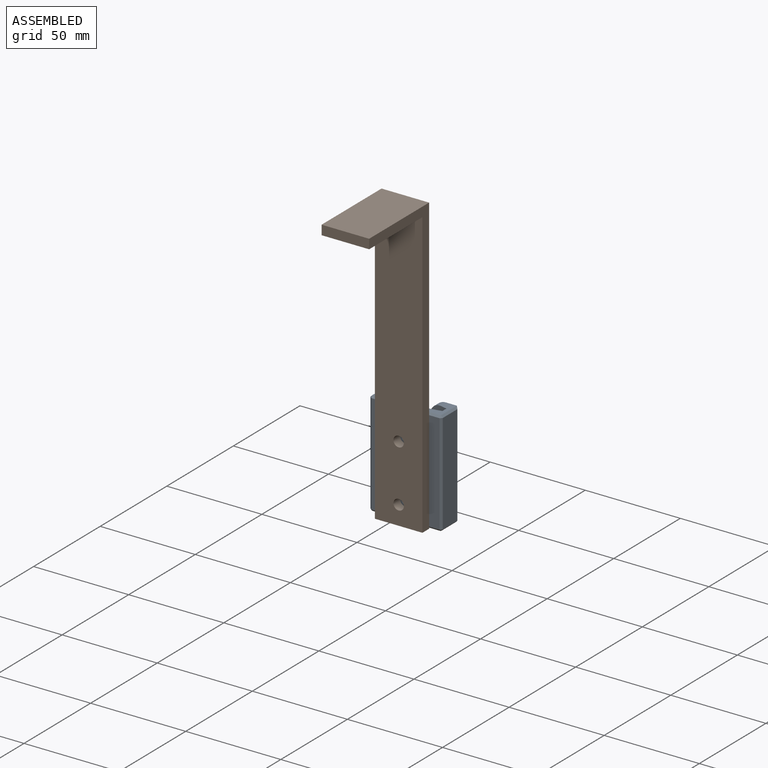
[diagram: assembled view]
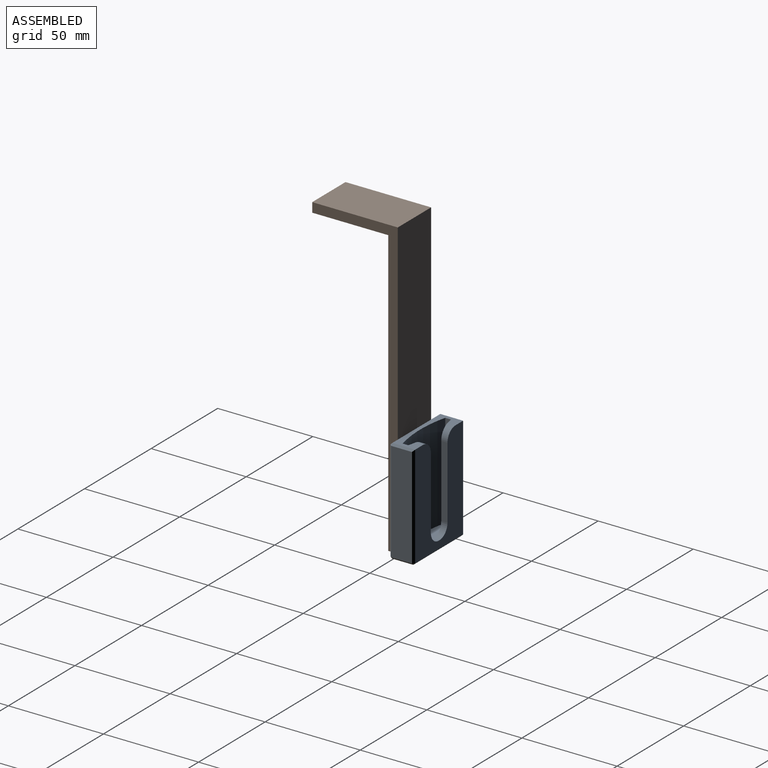
[diagram: assembled view, second angle]
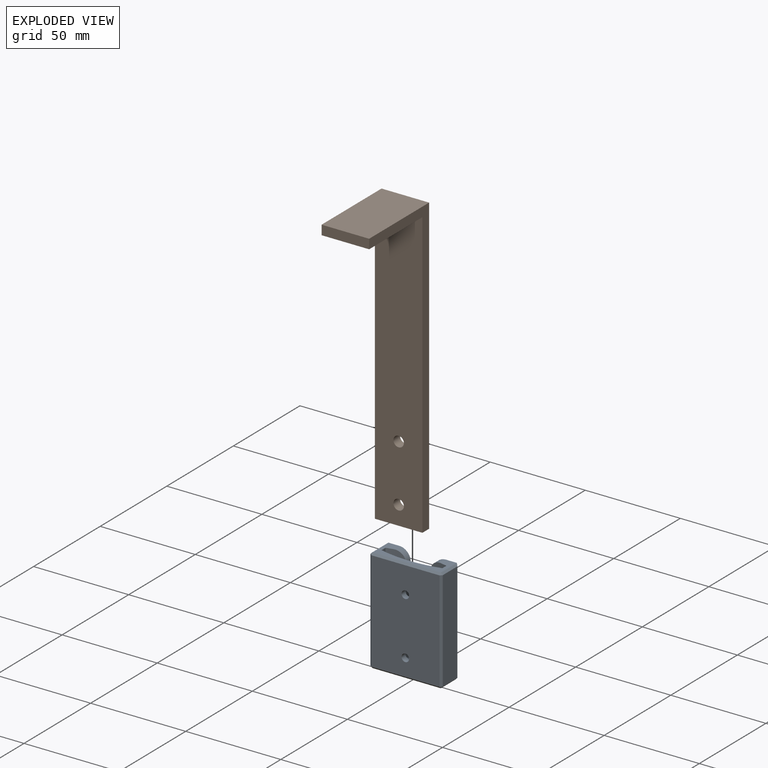
[diagram: exploded view]
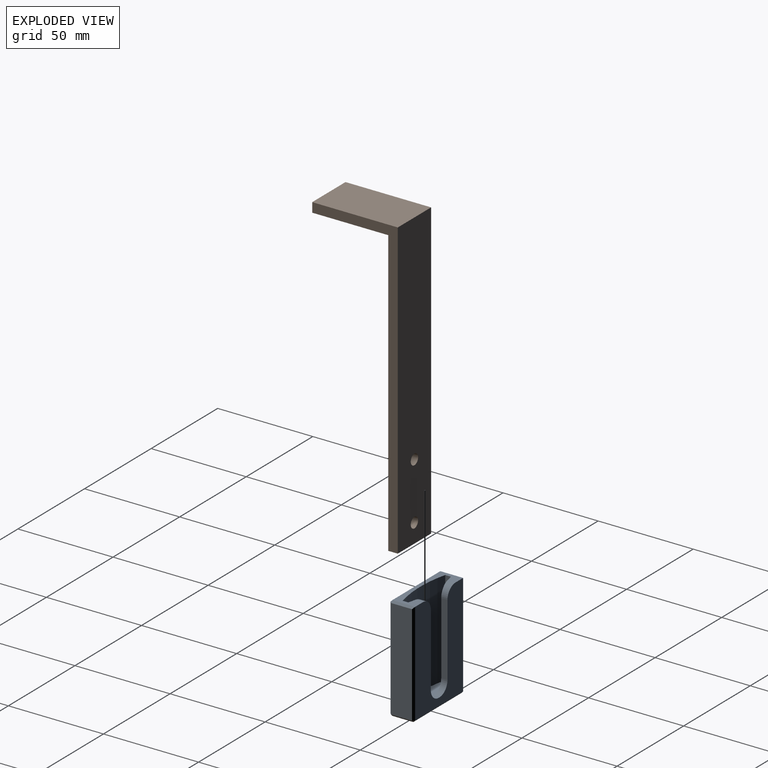
[diagram: exploded view, second angle]
ASSEMBLY  parts=2 mates=2
PART A: 37 faces, bbox 38x13x55 mm
  f0: plane 53x11mm, normal (1,0,0), area 583mm2, adj f19,f20,f21,f22
  f1: plane 54x36mm, normal (0,1,0), area 1319mm2, adj f5,f7,f8,f13,f14,f15,f16,f17
  f2: plane 53x11mm, normal (-1,0,0), area 583mm2, adj f27,f30,f33,f34
  f3: plane 53x36mm, normal (0,-1,0), area 1882.9mm2, adj f22,f23,f29,f30,f35,f36
  f4: plane 36x11mm, normal (0,0,-1), area 396mm2, adj f19,f23,f27,f28
  f5: plane 36x12mm, normal (0,0,1), area 167.4mm2, adj f1,f6,f9,f10,f11,f12,f14,f15
  f6: cylinder r=65mm len=50mm, axis (0,0,1), area 495.3mm2, adj f5,f7,f12,f13,f14,f16
  f7: plane 38x3.3mm, normal (-1,0,0), area 125.4mm2, adj f1,f6,f14,f16
  f8: plane 38x3.3mm, normal (1,0,0), area 125.4mm2, adj f1,f9,f15,f17
  f9: cylinder r=65mm len=50mm, axis (0,0,1), area 495.3mm2, adj f5,f8,f10,f13,f15,f17
  f10: plane 50x3mm, normal (1,0,0), area 150mm2, adj f5,f9,f11,f13
  f11: cylinder r=65mm len=50mm, axis (0,0,1), area 1591.5mm2, adj f5,f10,f12,f13,f35,f36
  f12: plane 50x3mm, normal (-1,0,0), area 150mm2, adj f5,f6,f11,f13
  f13: plane 32x10mm, normal (0,0,1), area 183.1mm2, adj f1,f6,f9,f10,f11,f12,f16,f17
  f14: cylinder r=6mm len=6mm, axis (0,-1,0), area 33.7mm2, adj f1,f5,f6,f7
  f15: cylinder r=6mm len=6mm, axis (0,1,0), area 33.7mm2, adj f1,f5,f8,f9
  f16: cylinder r=6mm len=6mm, axis (0,1,0), area 29.7mm2, adj f1,f6,f7,f13
  f17: cylinder r=6mm len=6mm, axis (0,-1,0), area 29.7mm2, adj f1,f8,f9,f13
  f18: plane 1x1mm, normal (0.58,-0.58,-0.58), area 0.9mm2, adj f19,f22,f23
  f19: plane 11x1mm, normal (0.71,0,-0.71), area 15.6mm2, adj f0,f4,f18,f24
  f20: plane 54x1mm, normal (0.71,0.71,0), area 75.7mm2, adj f0,f1,f21,f24
  f21: plane 12x1mm, normal (0.71,0,0.71), area 16.3mm2, adj f0,f5,f20,f25
  f22: plane 53x1mm, normal (0.71,-0.71,0), area 75mm2, adj f0,f3,f18,f25
  f23: plane 36x1mm, normal (0,-0.71,-0.71), area 50.9mm2, adj f3,f4,f18,f26
  f24: plane 1x1mm, normal (0.58,0.58,-0.58), area 0.9mm2, adj f19,f20,f28
  f25: plane 1x1mm, normal (0.58,-0.58,0.58), area 0.9mm2, adj f21,f22,f29
  f26: plane 1x1mm, normal (-0.58,-0.58,-0.58), area 0.9mm2, adj f23,f27,f30
  f27: plane 11x1mm, normal (-0.71,0,-0.71), area 15.6mm2, adj f2,f4,f26,f31
  f28: plane 36x1mm, normal (0,0.71,-0.71), area 50.9mm2, adj f1,f4,f24,f31
  f29: plane 36x1mm, normal (0,-0.71,0.71), area 50.9mm2, adj f3,f5,f25,f32
  f30: plane 53x1mm, normal (-0.71,-0.71,0), area 75mm2, adj f2,f3,f26,f32
  f31: plane 1x1mm, normal (-0.58,0.58,-0.58), area 0.9mm2, adj f27,f28,f33
  f32: plane 1x1mm, normal (-0.58,-0.58,0.58), area 0.9mm2, adj f29,f30,f34
  f33: plane 54x1mm, normal (-0.71,0.71,0), area 75.7mm2, adj f1,f2,f31,f34
  f34: plane 12x1mm, normal (-0.71,0,0.71), area 16.3mm2, adj f2,f5,f32,f33
  f35: cylinder r=2mm len=4mm, axis (0,-1,0), area 37.7mm2, adj f3,f11
  f36: cylinder r=2mm len=4mm, axis (0,-1,0), area 37.7mm2, adj f3,f11
PART B: 10 faces, bbox 25x45x155 mm
  f0: plane 45x25mm, normal (0,0,1), area 1125mm2, adj f1,f5,f6,f7
  f1: plane 25x5mm, normal (0,-1,0), area 125mm2, adj f0,f2,f6,f7
  f2: plane 40x25mm, normal (0,0,-1), area 1000mm2, adj f1,f3,f6,f7
  f3: plane 150x25mm, normal (0,-1,0), area 3702.5mm2, adj f2,f4,f6,f7,f8,f9
  f4: plane 25x5mm, normal (0,0,-1), area 125mm2, adj f3,f5,f6,f7
  f5: plane 155x25mm, normal (0,1,0), area 3827.5mm2, adj f0,f4,f6,f7,f8,f9
  f6: plane 155x45mm, normal (1,0,0), area 975mm2, adj f0,f1,f2,f3,f4,f5
  f7: plane 155x45mm, normal (-1,0,0), area 975mm2, adj f0,f1,f2,f3,f4,f5
  f8: cylinder r=2.75mm len=5.5mm, axis (0,1,0), area 86.4mm2, adj f3,f5
  f9: cylinder r=2.75mm len=5.5mm, axis (0,1,0), area 86.4mm2, adj f3,f5
PLACE A at identity fixed
PLACE B t=(0,-11.5,20)mm
MATE planar A.f4 <-> B.f4  axis (0,0,-1) through (0,0,-55)mm
MATE planar B.f5 <-> A.f3  axis (0,1,0) through (0,-6.5,23.15)mm
